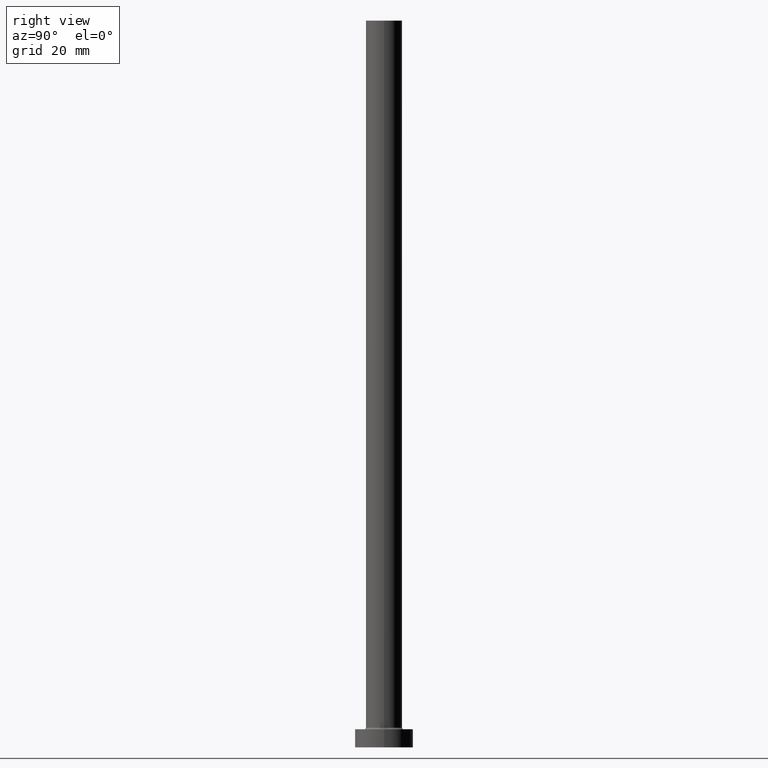
[diagram: clean part render]
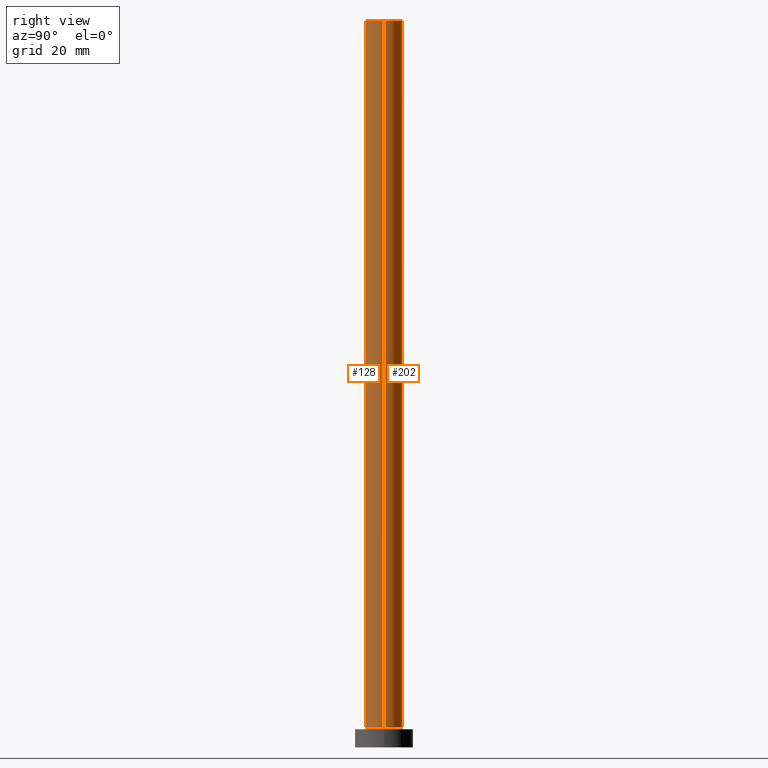
[diagram: same view with one multi-face feature highlighted, each face labeled with its STEP entity id]
A machine part, right view. The highlighted faces form ONE feature: a constant-radius fillet chain: 2 tangent blend faces with common blend radius 5 mm. The faces share edges in the B-rep.
Their STEP definitions:
[1] entity #128 (Cylinder):
#17 = AXIS2_PLACEMENT_3D ( 'NONE', #236, #329, #225 ) ;
#30 = ORIENTED_EDGE ( 'NONE', *, *, #120, .F. ) ;
#45 = EDGE_LOOP ( 'NONE', ( #412, #30, #217, #173 ) ) ;
#54 = CARTESIAN_POINT ( 'NONE',  ( 5.000000000000000000, 6.123233995736766282E-16, 5.500000000000005329 ) ) ;
#55 = VERTEX_POINT ( 'NONE', #109 ) ;
#56 = AXIS2_PLACEMENT_3D ( 'NONE', #394, #223, #302 ) ;
#78 = EDGE_CURVE ( 'NONE', #177, #55, #125, .T. ) ;
#98 = EDGE_CURVE ( 'NONE', #55, #122, #303, .T. ) ;
#103 = DIRECTION ( 'NONE',  ( -1.000000000000000000, 0.000000000000000000, 0.000000000000000000 ) ) ;
#105 = CARTESIAN_POINT ( 'NONE',  ( 5.000000000000000000, 6.123233995736766282E-16, 200.0000000000000000 ) ) ;
#109 = CARTESIAN_POINT ( 'NONE',  ( -5.000000000000000000, 0.000000000000000000, 5.500000000000005329 ) ) ;
#119 = CARTESIAN_POINT ( 'NONE',  ( -5.000000000000000000, 0.000000000000000000, 200.0000000000000000 ) ) ;
#120 = EDGE_CURVE ( 'NONE', #177, #453, #363, .T. ) ;
#121 = VECTOR ( 'NONE', #400, 1000.000000000000000 ) ;
#122 = VERTEX_POINT ( 'NONE', #54 ) ;
#125 = LINE ( 'NONE', #119, #121 ) ;
#128 = ADVANCED_FACE ( 'NONE', ( #212 ), #426, .T. ) ;
#146 = EDGE_CURVE ( 'NONE', #453, #122, #182, .T. ) ;
#173 = ORIENTED_EDGE ( 'NONE', *, *, #98, .T. ) ;
#176 = DIRECTION ( 'NONE',  ( -0.000000000000000000, -0.000000000000000000, -1.000000000000000000 ) ) ;
#177 = VERTEX_POINT ( 'NONE', #360 ) ;
#182 = LINE ( 'NONE', #282, #433 ) ;
#212 = FACE_OUTER_BOUND ( 'NONE', #45, .T. ) ;
#217 = ORIENTED_EDGE ( 'NONE', *, *, #78, .T. ) ;
#223 = DIRECTION ( 'NONE',  ( 0.000000000000000000, 0.000000000000000000, 1.000000000000000000 ) ) ;
#225 = DIRECTION ( 'NONE',  ( 1.000000000000000000, 0.000000000000000000, 0.000000000000000000 ) ) ;
#236 = CARTESIAN_POINT ( 'NONE',  ( 0.000000000000000000, 0.000000000000000000, 5.500000000000005329 ) ) ;
#282 = CARTESIAN_POINT ( 'NONE',  ( 5.000000000000000000, 6.123233995736766282E-16, 200.0000000000000000 ) ) ;
#302 = DIRECTION ( 'NONE',  ( 1.000000000000000000, 0.000000000000000000, 0.000000000000000000 ) ) ;
#303 = CIRCLE ( 'NONE', #17, 5.000000000000000000 ) ;
#323 = DIRECTION ( 'NONE',  ( -0.000000000000000000, -0.000000000000000000, -1.000000000000000000 ) ) ;
#329 = DIRECTION ( 'NONE',  ( 0.000000000000000000, 0.000000000000000000, 1.000000000000000000 ) ) ;
#360 = CARTESIAN_POINT ( 'NONE',  ( -5.000000000000000000, 0.000000000000000000, 200.0000000000000000 ) ) ;
#363 = CIRCLE ( 'NONE', #56, 5.000000000000000000 ) ;
#385 = CARTESIAN_POINT ( 'NONE',  ( 0.000000000000000000, 0.000000000000000000, 200.0000000000000000 ) ) ;
#394 = CARTESIAN_POINT ( 'NONE',  ( 0.000000000000000000, 0.000000000000000000, 200.0000000000000000 ) ) ;
#400 = DIRECTION ( 'NONE',  ( -0.000000000000000000, -0.000000000000000000, -1.000000000000000000 ) ) ;
#412 = ORIENTED_EDGE ( 'NONE', *, *, #146, .F. ) ;
#423 = AXIS2_PLACEMENT_3D ( 'NONE', #385, #176, #103 ) ;
#426 = CYLINDRICAL_SURFACE ( 'NONE', #423, 5.000000000000000000 ) ;
#433 = VECTOR ( 'NONE', #323, 1000.000000000000000 ) ;
#453 = VERTEX_POINT ( 'NONE', #105 ) ;
[2] entity #202 (Cylinder):
#21 = EDGE_CURVE ( 'NONE', #122, #55, #346, .T. ) ;
#54 = CARTESIAN_POINT ( 'NONE',  ( 5.000000000000000000, 6.123233995736766282E-16, 5.500000000000005329 ) ) ;
#55 = VERTEX_POINT ( 'NONE', #109 ) ;
#68 = ORIENTED_EDGE ( 'NONE', *, *, #78, .F. ) ;
#78 = EDGE_CURVE ( 'NONE', #177, #55, #125, .T. ) ;
#80 = DIRECTION ( 'NONE',  ( 0.000000000000000000, 0.000000000000000000, 1.000000000000000000 ) ) ;
#93 = CARTESIAN_POINT ( 'NONE',  ( 0.000000000000000000, 0.000000000000000000, 200.0000000000000000 ) ) ;
#105 = CARTESIAN_POINT ( 'NONE',  ( 5.000000000000000000, 6.123233995736766282E-16, 200.0000000000000000 ) ) ;
#109 = CARTESIAN_POINT ( 'NONE',  ( -5.000000000000000000, 0.000000000000000000, 5.500000000000005329 ) ) ;
#119 = CARTESIAN_POINT ( 'NONE',  ( -5.000000000000000000, 0.000000000000000000, 200.0000000000000000 ) ) ;
#121 = VECTOR ( 'NONE', #400, 1000.000000000000000 ) ;
#122 = VERTEX_POINT ( 'NONE', #54 ) ;
#125 = LINE ( 'NONE', #119, #121 ) ;
#146 = EDGE_CURVE ( 'NONE', #453, #122, #182, .T. ) ;
#164 = AXIS2_PLACEMENT_3D ( 'NONE', #219, #434, #358 ) ;
#177 = VERTEX_POINT ( 'NONE', #360 ) ;
#182 = LINE ( 'NONE', #282, #433 ) ;
#202 = ADVANCED_FACE ( 'NONE', ( #300 ), #268, .T. ) ;
#219 = CARTESIAN_POINT ( 'NONE',  ( 0.000000000000000000, 0.000000000000000000, 5.500000000000005329 ) ) ;
#245 = CIRCLE ( 'NONE', #373, 5.000000000000000000 ) ;
#256 = ORIENTED_EDGE ( 'NONE', *, *, #405, .F. ) ;
#268 = CYLINDRICAL_SURFACE ( 'NONE', #401, 5.000000000000000000 ) ;
#282 = CARTESIAN_POINT ( 'NONE',  ( 5.000000000000000000, 6.123233995736766282E-16, 200.0000000000000000 ) ) ;
#288 = EDGE_LOOP ( 'NONE', ( #256, #327, #371, #68 ) ) ;
#300 = FACE_OUTER_BOUND ( 'NONE', #288, .T. ) ;
#323 = DIRECTION ( 'NONE',  ( -0.000000000000000000, -0.000000000000000000, -1.000000000000000000 ) ) ;
#327 = ORIENTED_EDGE ( 'NONE', *, *, #146, .T. ) ;
#328 = CARTESIAN_POINT ( 'NONE',  ( 0.000000000000000000, 0.000000000000000000, 200.0000000000000000 ) ) ;
#346 = CIRCLE ( 'NONE', #164, 5.000000000000000000 ) ;
#358 = DIRECTION ( 'NONE',  ( 1.000000000000000000, 0.000000000000000000, 0.000000000000000000 ) ) ;
#359 = DIRECTION ( 'NONE',  ( 1.000000000000000000, 0.000000000000000000, 0.000000000000000000 ) ) ;
#360 = CARTESIAN_POINT ( 'NONE',  ( -5.000000000000000000, 0.000000000000000000, 200.0000000000000000 ) ) ;
#370 = DIRECTION ( 'NONE',  ( -1.000000000000000000, 0.000000000000000000, 0.000000000000000000 ) ) ;
#371 = ORIENTED_EDGE ( 'NONE', *, *, #21, .T. ) ;
#373 = AXIS2_PLACEMENT_3D ( 'NONE', #328, #80, #359 ) ;
#400 = DIRECTION ( 'NONE',  ( -0.000000000000000000, -0.000000000000000000, -1.000000000000000000 ) ) ;
#401 = AXIS2_PLACEMENT_3D ( 'NONE', #93, #406, #370 ) ;
#405 = EDGE_CURVE ( 'NONE', #453, #177, #245, .T. ) ;
#406 = DIRECTION ( 'NONE',  ( -0.000000000000000000, -0.000000000000000000, -1.000000000000000000 ) ) ;
#433 = VECTOR ( 'NONE', #323, 1000.000000000000000 ) ;
#434 = DIRECTION ( 'NONE',  ( 0.000000000000000000, 0.000000000000000000, 1.000000000000000000 ) ) ;
#453 = VERTEX_POINT ( 'NONE', #105 ) ;